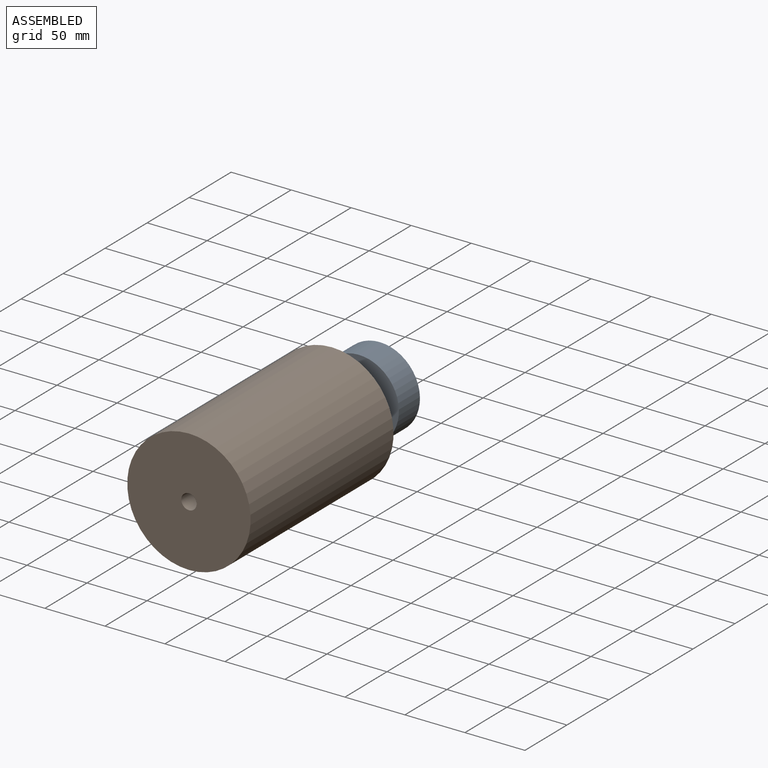
[diagram: assembled view]
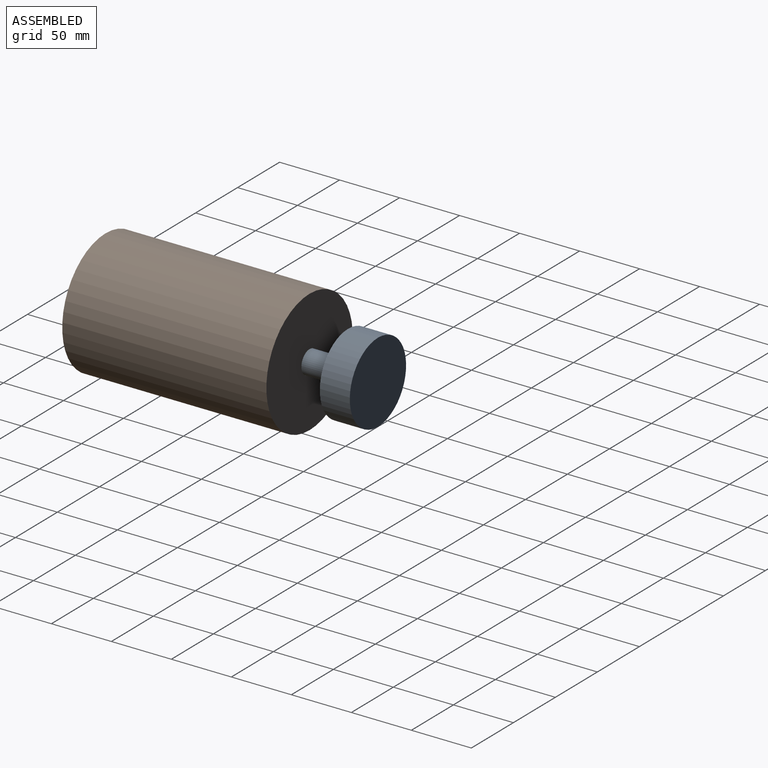
[diagram: assembled view, second angle]
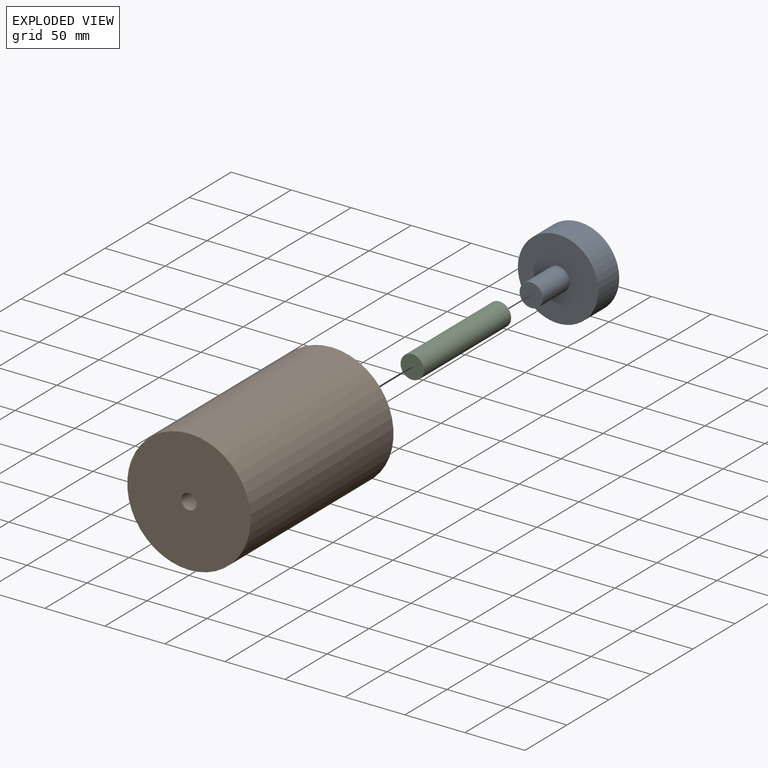
[diagram: exploded view]
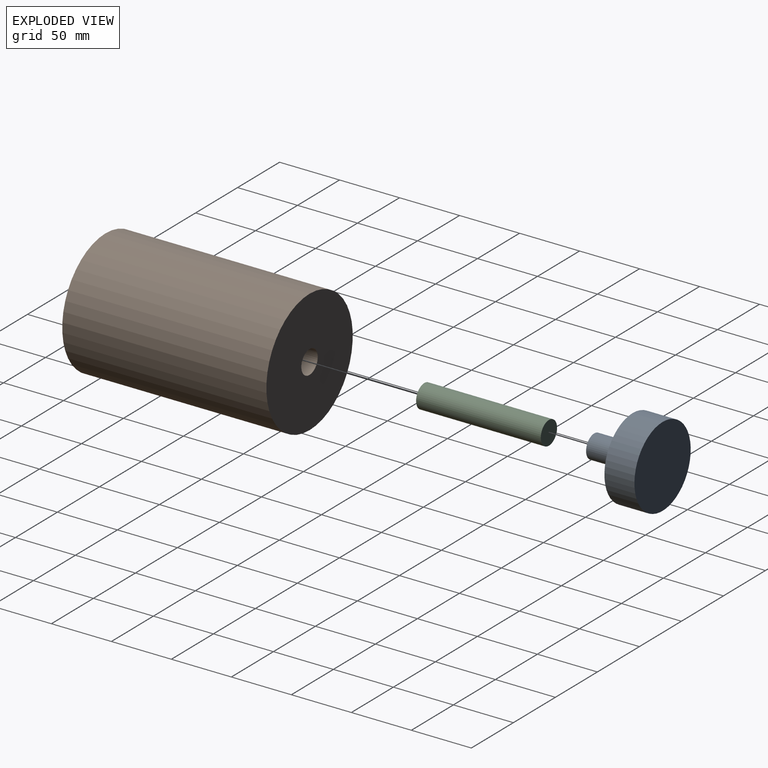
[diagram: exploded view, second angle]
ASSEMBLY  parts=3 mates=2
PART A: 5 faces, bbox 67x57x67 mm
  f0: cylinder r=9.65mm len=32mm, axis (0,-1,0), area 1940.2mm2, adj f1,f4
  f1: plane 19.3x19.3mm, normal (0,-1,0), area 292.6mm2, adj f0
  f2: cylinder r=33.5mm len=67mm, axis (0,-1,0), area 5262.2mm2, adj f3,f4
  f3: plane 67x67mm, normal (0,1,0), area 3525.7mm2, adj f2
  f4: plane 67x67mm, normal (0,-1,0), area 3233.1mm2, adj f0,f2
PART B: 6 faces, bbox 102.8x170.1x102.8 mm
  f0: cylinder r=6.4mm len=60.4mm, axis (0,1,0), area 2428.7mm2, adj f1,f5
  f1: plane 102.8x102.8mm, normal (0,-1,0), area 8171.3mm2, adj f0,f2
  f2: cylinder r=51.4mm len=170.1mm, axis (0,1,0), area 54934.8mm2, adj f1,f3
  f3: plane 102.8x102.8mm, normal (0,1,0), area 8001.3mm2, adj f2,f4
  f4: cylinder r=9.75mm len=103.9mm, axis (0,1,0), area 6365mm2, adj f3,f5
  f5: cone r=6.4mm half-angle=30deg, axis (0,1,0), area 339.9mm2, adj f0,f4
PART C: 3 faces, bbox 19.4x103.9x19.4 mm
  f0: plane 19.4x19.4mm, normal (0,-1,0), area 295.6mm2, adj f1
  f1: cylinder r=9.7mm len=103.9mm, axis (0,-1,0), area 6332.4mm2, adj f0,f2
  f2: plane 19.4x19.4mm, normal (0,1,0), area 295.6mm2, adj f1
PLACE A at identity
PLACE B at identity fixed
PLACE C at identity
MATE cylindrical B.f0 <-> C.f1  axis (0,1,0) through (0,170.1,0)mm
MATE fastened A.f0 <-> B.f0  axis (0,-1,0) through (0,170.1,0)mm
